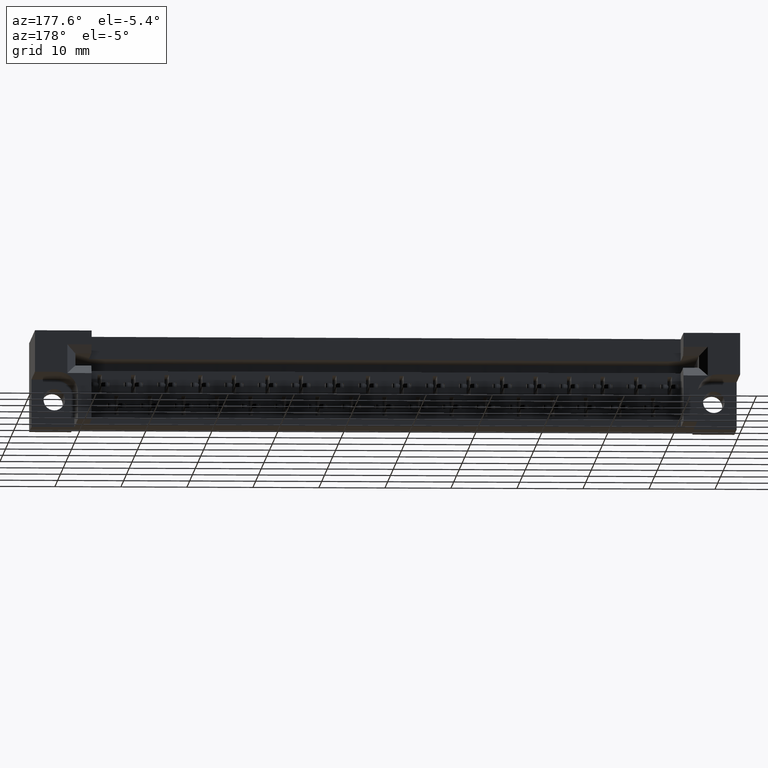
[diagram: clean part render]
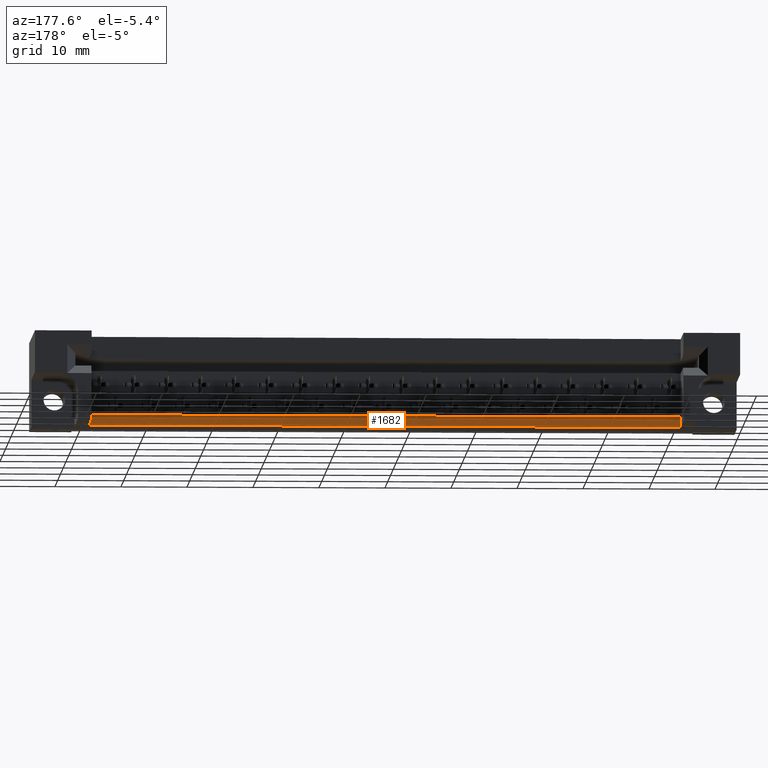
[diagram: same view with one face highlighted and labeled with its STEP entity id]
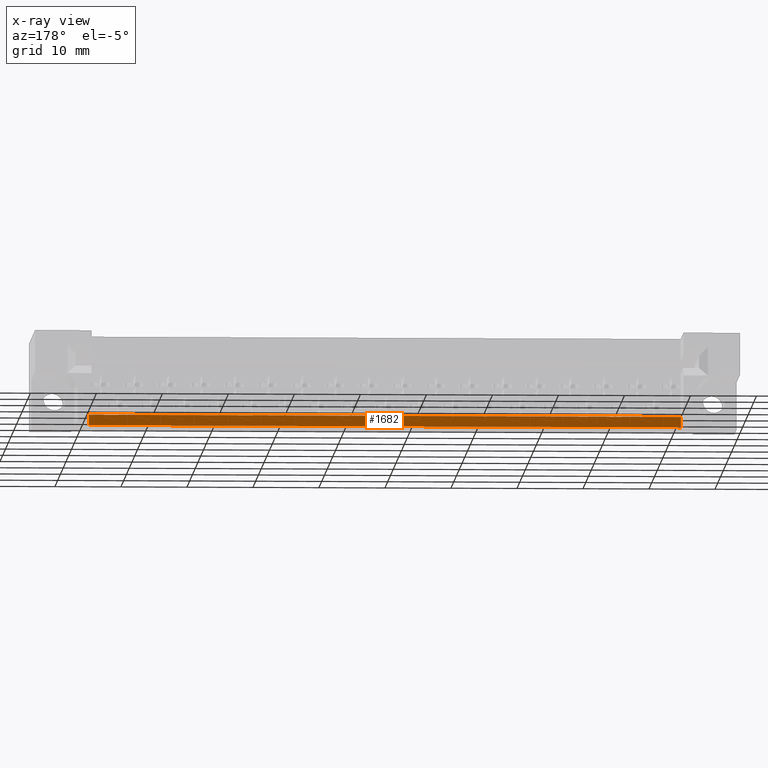
[diagram: x-ray of the same camera — body ghosted, the highlighted face saturated]
A machine part, auxiliary view. The second image highlights one B-rep face of the part: STEP entity #1682.
The next image is the same camera in x-ray: the body ghosted, the highlighted face saturated — about 0% of this face is hidden behind the body in this view.
In plain terms, the highlighted planar face has unit normal (0, -1, 0).
Its self-contained STEP definition (entity closure, byte-faithful):
#1181 = DIRECTION ( 'NONE',  ( 1.028944630382019600E-015, -0.0000000000000000000, 1.000000000000000000 ) ) ;
#1682 = ADVANCED_FACE ( 'NONE', ( #6185 ), #5736, .F. ) ;
#2029 = VECTOR ( 'NONE', #5929, 39.37007874015748100 ) ;
#2753 = CARTESIAN_POINT ( 'NONE',  ( 0.0000000000000000000, 0.4530000000000000100, -0.5310000000000000300 ) ) ;
#3156 = CARTESIAN_POINT ( 'NONE',  ( 3.867999999999999900, 0.4530000000000000100, -0.4690000000000000300 ) ) ;
#3295 = CARTESIAN_POINT ( 'NONE',  ( 3.867999999999999900, 0.4530000000000000100, 0.0000000000000000000 ) ) ;
#3668 = DIRECTION ( 'NONE',  ( 0.0000000000000000000, -0.0000000000000000000, -1.000000000000000000 ) ) ;
#4890 = VECTOR ( 'NONE', #16715, 39.37007874015748100 ) ;
#5736 = PLANE ( 'NONE',  #28084 ) ;
#5929 = DIRECTION ( 'NONE',  ( 1.000000000000000000, -0.0000000000000000000, 0.0000000000000000000 ) ) ;
#6144 = LINE ( 'NONE', #2753, #12258 ) ;
#6185 = FACE_OUTER_BOUND ( 'NONE', #10141, .T. ) ;
#7776 = LINE ( 'NONE', #27413, #2029 ) ;
#7814 = LINE ( 'NONE', #3295, #27632 ) ;
#7903 = VERTEX_POINT ( 'NONE', #10971 ) ;
#8038 = VERTEX_POINT ( 'NONE', #12302 ) ;
#8774 = VERTEX_POINT ( 'NONE', #17698 ) ;
#10141 = EDGE_LOOP ( 'NONE', ( #25416, #11586, #21550, #24972 ) ) ;
#10971 = CARTESIAN_POINT ( 'NONE',  ( 0.3380000000000002400, 0.4530000000000000100, -0.4690000000000000300 ) ) ;
#11137 = EDGE_CURVE ( 'NONE', #8774, #8038, #6144, .T. ) ;
#11586 = ORIENTED_EDGE ( 'NONE', *, *, #11137, .T. ) ;
#12258 = VECTOR ( 'NONE', #26863, 39.37007874015748100 ) ;
#12302 = CARTESIAN_POINT ( 'NONE',  ( 0.3380000000000003600, 0.4530000000000000100, -0.5310000000000000300 ) ) ;
#14515 = DIRECTION ( 'NONE',  ( 0.0000000000000000000, -1.000000000000000000, 0.0000000000000000000 ) ) ;
#16715 = DIRECTION ( 'NONE',  ( 0.0000000000000000000, 0.0000000000000000000, -1.000000000000000000 ) ) ;
#16795 = EDGE_CURVE ( 'NONE', #8774, #22433, #7814, .T. ) ;
#17698 = CARTESIAN_POINT ( 'NONE',  ( 3.867999999999999400, 0.4530000000000000100, -0.5310000000000002500 ) ) ;
#17840 = LINE ( 'NONE', #25682, #4890 ) ;
#20997 = CARTESIAN_POINT ( 'NONE',  ( 0.0000000000000000000, 0.4530000000000000100, -0.5310000000000000300 ) ) ;
#21550 = ORIENTED_EDGE ( 'NONE', *, *, #22702, .F. ) ;
#22433 = VERTEX_POINT ( 'NONE', #3156 ) ;
#22702 = EDGE_CURVE ( 'NONE', #7903, #8038, #17840, .T. ) ;
#24972 = ORIENTED_EDGE ( 'NONE', *, *, #28128, .T. ) ;
#25416 = ORIENTED_EDGE ( 'NONE', *, *, #16795, .F. ) ;
#25682 = CARTESIAN_POINT ( 'NONE',  ( 0.3380000000000003600, 0.4530000000000000100, 0.0000000000000000000 ) ) ;
#26863 = DIRECTION ( 'NONE',  ( -1.000000000000000000, -0.0000000000000000000, -0.0000000000000000000 ) ) ;
#27413 = CARTESIAN_POINT ( 'NONE',  ( 0.0000000000000000000, 0.4530000000000000100, -0.4690000000000000300 ) ) ;
#27632 = VECTOR ( 'NONE', #1181, 39.37007874015748100 ) ;
#28084 = AXIS2_PLACEMENT_3D ( 'NONE', #20997, #14515, #3668 ) ;
#28128 = EDGE_CURVE ( 'NONE', #7903, #22433, #7776, .T. ) ;